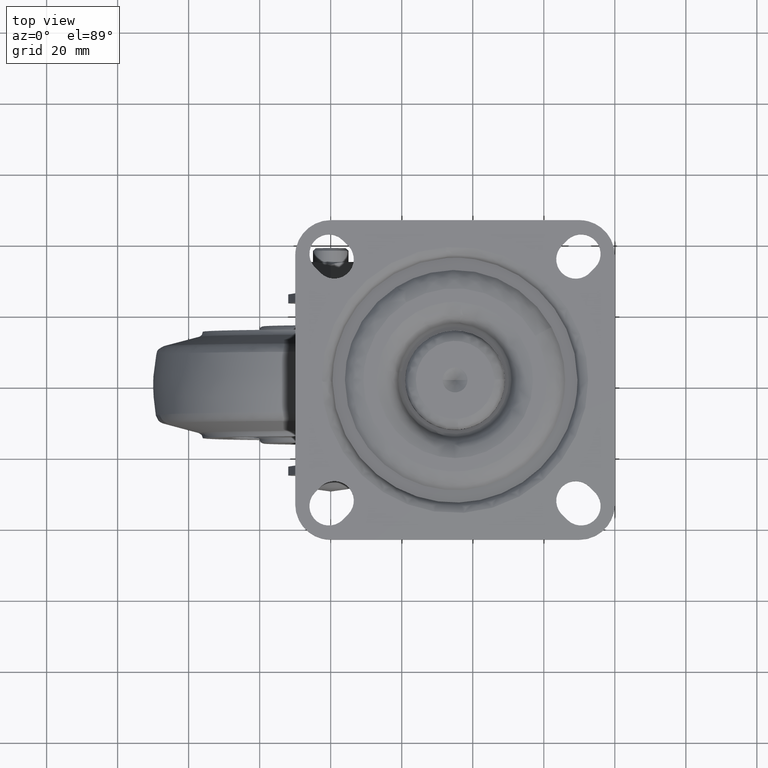
[diagram: clean part render]
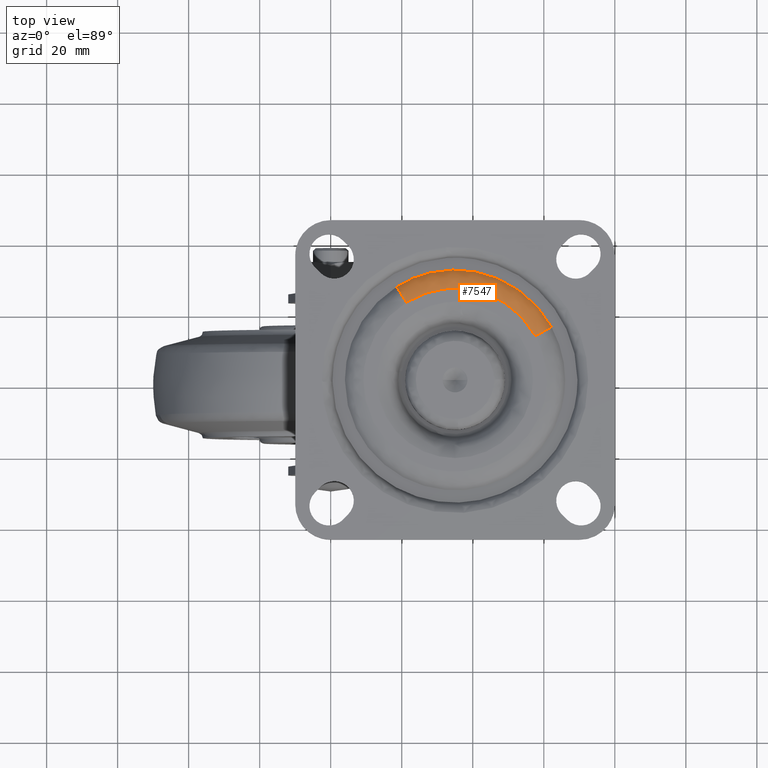
[diagram: same view with one face highlighted and labeled with its STEP entity id]
A machine part, top view. The second image highlights one B-rep face of the part: STEP entity #7547.
In plain terms, the highlighted face is a freeform B-spline surface patch.
Its self-contained STEP definition (entity closure, byte-faithful):
#7363=CARTESIAN_POINT('',(18.536423239042850,26.266911508874010,79.000008000588139));
#7364=VERTEX_POINT('',#7363);
#7397=CARTESIAN_POINT('',(62.165507081028402,14.934363897047190,79.000008000591379));
#7398=VERTEX_POINT('',#7397);
#7412=CARTESIAN_POINT('',(57.612084004393679,12.431098377332781,82.000007999999994));
#7413=VERTEX_POINT('',#7412);
#7414=CARTESIAN_POINT('',(62.165507081028395,14.934363897047190,79.000008000591365));
#7415=CARTESIAN_POINT('',(60.647699388806252,14.099942057037897,82.000007997840981));
#7416=CARTESIAN_POINT('',(57.612084004393679,12.431098377332777,82.000007999999994));
#7424=(BOUNDED_CURVE()B_SPLINE_CURVE(2,(#7414,#7415,#7416),.UNSPECIFIED.,.F.,.U.)B_SPLINE_CURVE_WITH_KNOTS((3,3),(-1.633016443720578,-0.356287690261620),.UNSPECIFIED.)CURVE()GEOMETRIC_REPRESENTATION_ITEM()RATIONAL_B_SPLINE_CURVE((0.910229672017121,0.789167271787212,0.912275222690406))REPRESENTATION_ITEM(''));
#7425=EDGE_CURVE('',#7398,#7413,#7424,.T.);
#7459=CARTESIAN_POINT('',(21.296012083818280,21.864109065296962,82.000007999999994));
#7460=VERTEX_POINT('',#7459);
#7474=CARTESIAN_POINT('',(18.536423239042854,26.266911508874003,79.000008000588139));
#7475=CARTESIAN_POINT('',(19.456286186959751,24.799310695115441,82.000007994767316));
#7476=CARTESIAN_POINT('',(21.296012083818287,21.864109065296962,82.000007999999994));
#7484=(BOUNDED_CURVE()B_SPLINE_CURVE(2,(#7474,#7475,#7476),.UNSPECIFIED.,.F.,.U.)B_SPLINE_CURVE_WITH_KNOTS((3,3),(-1.633016443722164,-0.356287691395719),.UNSPECIFIED.)CURVE()GEOMETRIC_REPRESENTATION_ITEM()RATIONAL_B_SPLINE_CURVE((0.889754784452876,0.771415586074633,0.891754321887747))REPRESENTATION_ITEM(''));
#7485=EDGE_CURVE('',#7364,#7460,#7484,.T.);
#7490=CARTESIAN_POINT('',(62.290406476084129,15.003027920458951,78.738342759686390));
#7491=CARTESIAN_POINT('',(47.287378555625175,42.293434396543070,78.738342759686375));
#7492=CARTESIAN_POINT('',(19.996972079541067,27.290406476084126,78.738342759686390));
#7493=CARTESIAN_POINT('',(19.215933124634656,26.861026677080559,78.738342759686418));
#7494=CARTESIAN_POINT('',(18.460729779378624,26.387680325887537,78.738342759686404));
#7495=CARTESIAN_POINT('',(60.741446177533490,14.151479790268832,82.184472761075043));
#7496=CARTESIAN_POINT('',(46.589966387264660,39.892925967802306,82.184472761075028));
#7497=CARTESIAN_POINT('',(20.848520209731177,25.741446177533490,82.184472761075043));
#7498=CARTESIAN_POINT('',(20.111811790312832,25.336437296648675,82.184472761075057));
#7499=CARTESIAN_POINT('',(19.399472592212675,24.889957335522219,82.184472761075043));
#7500=CARTESIAN_POINT('',(57.351665177334432,12.287931915494740,81.992643930859572));
#7501=CARTESIAN_POINT('',(45.063733261839687,34.639597092829170,81.992643930859543));
#7502=CARTESIAN_POINT('',(22.712068084505258,22.351665177334446,81.992643930859572));
#7503=CARTESIAN_POINT('',(22.072373647347572,21.999990184525167,81.992643930859572));
#7504=CARTESIAN_POINT('',(21.453839352933226,21.612305260738815,81.992643930859586));
#7512=(BOUNDED_SURFACE()B_SPLINE_SURFACE(2,2,((#7490,#7495,#7500),(#7491,#7496,#7501),(#7492,#7497,#7502),(#7493,#7498,#7503),(#7494,#7499,#7504)),.UNSPECIFIED.,.F.,.F.,.U.)B_SPLINE_SURFACE_WITH_KNOTS((3,2,3),(3,3),(0.0,51.598632042849488,53.662575356231862),(0.0,7.073214836394357),.UNSPECIFIED.)GEOMETRIC_REPRESENTATION_ITEM()RATIONAL_B_SPLINE_SURFACE(((0.922933044264743,0.776361723126232,0.925182947792535),(0.652612214180744,0.548970639076232,0.654203136222261),(0.922933044264743,0.776361723126232,0.925182947792535),(0.912120221373305,0.767266088438513,0.914343765666783),(0.902172423488228,0.758898103831871,0.904371717284128)))REPRESENTATION_ITEM('')SURFACE());
#7513=CARTESIAN_POINT('',(62.165507081028395,14.934363897047197,79.000008000591379));
#7514=CARTESIAN_POINT('',(53.333348893293476,30.999999999999996,79.000007999999994));
#7515=CARTESIAN_POINT('',(35.0,31.0,79.000007999999994));
#7516=CARTESIAN_POINT('',(26.087857435525166,30.999999999999993,79.000007999999994));
#7517=CARTESIAN_POINT('',(18.536423239042847,26.266911508874013,79.000008000588153));
#7525=(BOUNDED_CURVE()B_SPLINE_CURVE(2,(#7513,#7514,#7515,#7516,#7517),.UNSPECIFIED.,.F.,.U.)B_SPLINE_CURVE_WITH_KNOTS((3,2,3),(0.582050816103967,0.750000000000000,0.840826728946675),.UNSPECIFIED.)CURVE()GEOMETRIC_REPRESENTATION_ITEM()RATIONAL_B_SPLINE_CURVE((0.870842360845533,0.803235291726393,1.0,0.893589868018046,0.864498809753731))REPRESENTATION_ITEM(''));
#7526=EDGE_CURVE('',#7398,#7364,#7525,.T.);
#7527=ORIENTED_EDGE('',*,*,#7526,.T.);
#7528=ORIENTED_EDGE('',*,*,#7485,.T.);
#7529=CARTESIAN_POINT('',(57.612084004393679,12.431098377332777,82.000007999999994));
#7530=CARTESIAN_POINT('',(50.260352916804621,25.803847577293343,82.000007999999994));
#7531=CARTESIAN_POINT('',(35.0,25.803847577293350,82.000007999999994));
#7532=CARTESIAN_POINT('',(27.581691344260300,25.803847577293350,82.000008000000008));
#7533=CARTESIAN_POINT('',(21.296012083818287,21.864109065296962,82.000007999999994));
#7541=(BOUNDED_CURVE()B_SPLINE_CURVE(2,(#7529,#7530,#7531,#7532,#7533),.UNSPECIFIED.,.F.,.U.)B_SPLINE_CURVE_WITH_KNOTS((3,2,3),(0.582050816104805,0.750000000000000,0.840826728949185),.UNSPECIFIED.)CURVE()GEOMETRIC_REPRESENTATION_ITEM()RATIONAL_B_SPLINE_CURVE((0.870842360844858,0.803235291727376,1.0,0.893589868015105,0.864498809752122))REPRESENTATION_ITEM(''));
#7542=EDGE_CURVE('',#7413,#7460,#7541,.T.);
#7543=ORIENTED_EDGE('',*,*,#7542,.F.);
#7544=ORIENTED_EDGE('',*,*,#7425,.F.);
#7545=EDGE_LOOP('',(#7527,#7528,#7543,#7544));
#7546=FACE_OUTER_BOUND('',#7545,.T.);
#7547=ADVANCED_FACE('',(#7546),#7512,.T.);